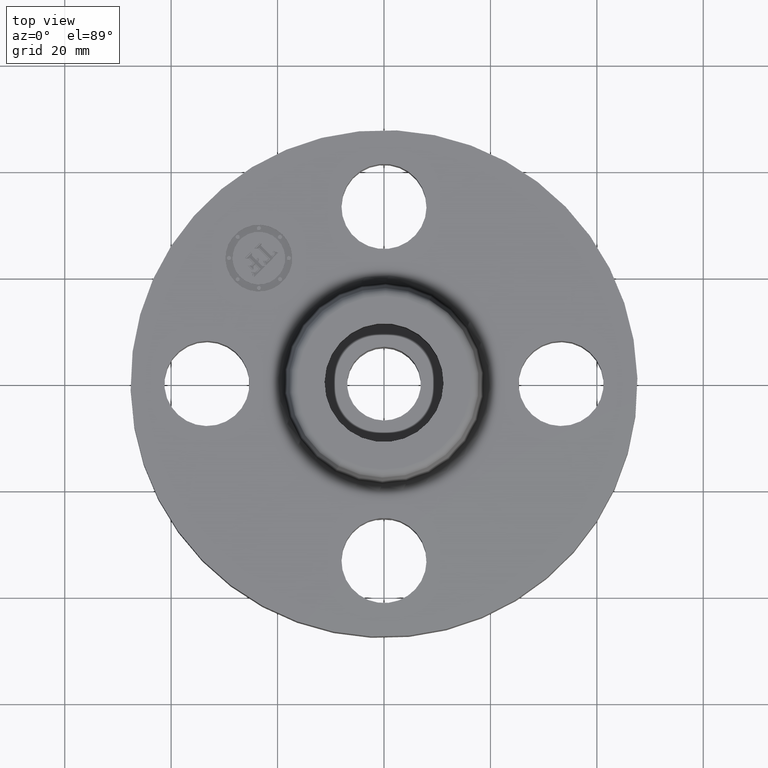
[diagram: clean part render]
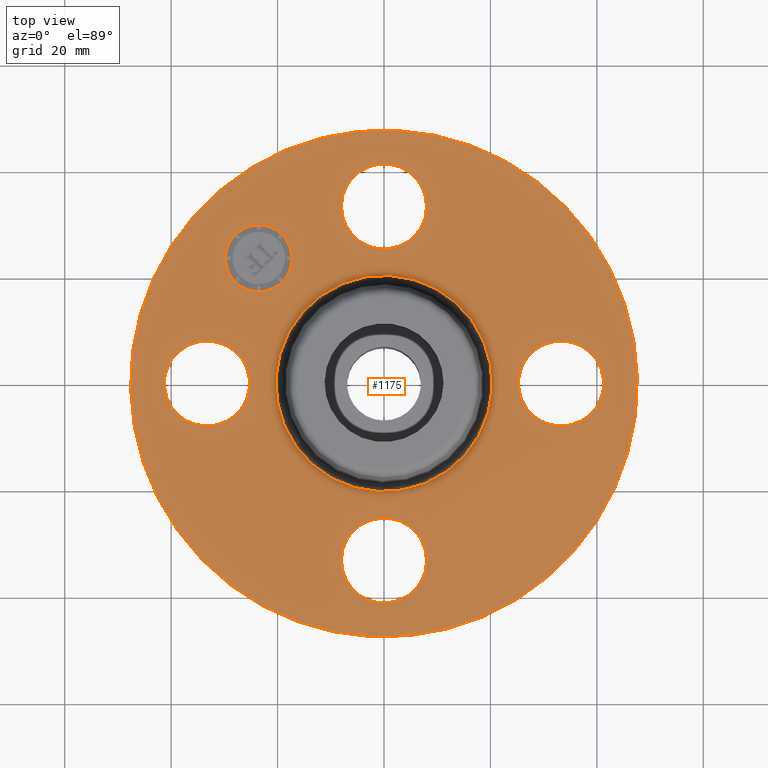
[diagram: same view with one face highlighted and labeled with its STEP entity id]
A machine part, top view. The second image highlights one B-rep face of the part: STEP entity #1175.
In plain terms, the highlighted planar face has unit normal (0, 0, -1).
Its self-contained STEP definition (entity closure, byte-faithful):
#573=AXIS2_PLACEMENT_3D('Circle Axis2P3D',#571,#572,$) ;
#592=AXIS2_PLACEMENT_3D('Circle Axis2P3D',#590,#591,$) ;
#623=AXIS2_PLACEMENT_3D('Circle Axis2P3D',#621,#622,$) ;
#654=AXIS2_PLACEMENT_3D('Circle Axis2P3D',#652,#653,$) ;
#685=AXIS2_PLACEMENT_3D('Circle Axis2P3D',#683,#684,$) ;
#716=AXIS2_PLACEMENT_3D('Circle Axis2P3D',#714,#715,$) ;
#728=AXIS2_PLACEMENT_3D('Circle Axis2P3D',#726,#727,$) ;
#744=AXIS2_PLACEMENT_3D('Circle Axis2P3D',#742,#743,$) ;
#760=AXIS2_PLACEMENT_3D('Circle Axis2P3D',#758,#759,$) ;
#776=AXIS2_PLACEMENT_3D('Circle Axis2P3D',#774,#775,$) ;
#797=AXIS2_PLACEMENT_3D('Circle Axis2P3D',#795,#796,$) ;
#832=AXIS2_PLACEMENT_3D('Circle Axis2P3D',#830,#831,$) ;
#1131=AXIS2_PLACEMENT_3D('Plane Axis2P3D',#1128,#1129,#1130) ;
#1159=AXIS2_PLACEMENT_3D('Circle Axis2P3D',#1157,#1158,$) ;
#1168=AXIS2_PLACEMENT_3D('Circle Axis2P3D',#1166,#1167,$) ;
#568=CARTESIAN_POINT('Vertex',(-0.898922884886,-1.64546730355,0.560000000002)) ;
#571=CARTESIAN_POINT('Axis2P3D Location',(0.,0.,0.560000000002)) ;
#575=CARTESIAN_POINT('Vertex',(0.898922884886,1.64546730355,0.560000000002)) ;
#590=CARTESIAN_POINT('Axis2P3D Location',(0.,0.,0.560000000002)) ;
#611=CARTESIAN_POINT('Vertex',(0.276438506997,-1.46101904467,0.560000000002)) ;
#618=CARTESIAN_POINT('Vertex',(-0.276438506997,-1.15898095534,0.560000000002)) ;
#621=CARTESIAN_POINT('Axis2P3D Location',(1.60428730689E-016,-1.31000000001,0.560000000002)) ;
#642=CARTESIAN_POINT('Vertex',(-1.46101904467,-0.276438506997,0.560000000002)) ;
#649=CARTESIAN_POINT('Vertex',(-1.15898095534,0.276438506997,0.560000000002)) ;
#652=CARTESIAN_POINT('Axis2P3D Location',(-1.31000000001,-2.40643096033E-016,0.560000000002)) ;
#673=CARTESIAN_POINT('Vertex',(-0.276438506997,1.46101904467,0.560000000002)) ;
#680=CARTESIAN_POINT('Vertex',(0.276438506997,1.15898095534,0.560000000002)) ;
#683=CARTESIAN_POINT('Axis2P3D Location',(0.,1.31000000001,0.560000000002)) ;
#704=CARTESIAN_POINT('Vertex',(1.46101904467,0.276438506997,0.560000000002)) ;
#711=CARTESIAN_POINT('Vertex',(1.15898095534,-0.276438506997,0.560000000002)) ;
#714=CARTESIAN_POINT('Axis2P3D Location',(1.31000000001,8.02143653445E-017,0.560000000002)) ;
#726=CARTESIAN_POINT('Axis2P3D Location',(1.31000000001,8.02143653445E-017,0.560000000002)) ;
#742=CARTESIAN_POINT('Axis2P3D Location',(0.,1.31000000001,0.560000000002)) ;
#758=CARTESIAN_POINT('Axis2P3D Location',(-1.31000000001,-2.40643096033E-016,0.560000000002)) ;
#774=CARTESIAN_POINT('Axis2P3D Location',(1.60428730689E-016,-1.31000000001,0.560000000002)) ;
#795=CARTESIAN_POINT('Axis2P3D Location',(0.,0.,0.560000000002)) ;
#799=CARTESIAN_POINT('Vertex',(0.383706301512,0.702369673661,0.560000000002)) ;
#801=CARTESIAN_POINT('Vertex',(-0.383706301512,-0.702369673661,0.560000000002)) ;
#830=CARTESIAN_POINT('Axis2P3D Location',(0.,0.,0.560000000002)) ;
#1128=CARTESIAN_POINT('Axis2P3D Location',(0.,1.87500000001,0.560000000002)) ;
#1157=CARTESIAN_POINT('Axis2P3D Location',(-0.926309883358,0.926309883358,0.560000000002)) ;
#1161=CARTESIAN_POINT('Vertex',(-1.1013188117,0.751300955014,0.560000000002)) ;
#1163=CARTESIAN_POINT('Vertex',(-0.751300955014,1.1013188117,0.560000000002)) ;
#1166=CARTESIAN_POINT('Axis2P3D Location',(-0.926309883358,0.926309883358,0.560000000002)) ;
#572=DIRECTION('Axis2P3D Direction',(0.,0.,-0.0393700787402)) ;
#591=DIRECTION('Axis2P3D Direction',(0.,0.,-0.0393700787402)) ;
#622=DIRECTION('Axis2P3D Direction',(-0.,0.,-0.0393700787402)) ;
#653=DIRECTION('Axis2P3D Direction',(0.,0.,-0.0393700787402)) ;
#684=DIRECTION('Axis2P3D Direction',(0.,-0.,-0.0393700787402)) ;
#715=DIRECTION('Axis2P3D Direction',(0.,-0.,-0.0393700787402)) ;
#727=DIRECTION('Axis2P3D Direction',(0.,-0.,-0.0393700787402)) ;
#743=DIRECTION('Axis2P3D Direction',(0.,-0.,-0.0393700787402)) ;
#759=DIRECTION('Axis2P3D Direction',(0.,0.,-0.0393700787402)) ;
#775=DIRECTION('Axis2P3D Direction',(-0.,0.,-0.0393700787402)) ;
#796=DIRECTION('Axis2P3D Direction',(0.,0.,-0.0393700787402)) ;
#831=DIRECTION('Axis2P3D Direction',(0.,0.,-0.0393700787402)) ;
#1129=DIRECTION('Axis2P3D Direction',(0.,0.,-0.0393700787402)) ;
#1130=DIRECTION('Axis2P3D XDirection',(0.0393700787402,0.,0.)) ;
#1158=DIRECTION('Axis2P3D Direction',(0.,0.,-0.0393700787402)) ;
#1167=DIRECTION('Axis2P3D Direction',(0.,0.,-0.0393700787402)) ;
#1134=ORIENTED_EDGE('',*,*,#594,.F.) ;
#1135=ORIENTED_EDGE('',*,*,#577,.F.) ;
#1138=ORIENTED_EDGE('',*,*,#687,.T.) ;
#1139=ORIENTED_EDGE('',*,*,#746,.T.) ;
#1142=ORIENTED_EDGE('',*,*,#834,.T.) ;
#1143=ORIENTED_EDGE('',*,*,#803,.T.) ;
#1146=ORIENTED_EDGE('',*,*,#730,.T.) ;
#1147=ORIENTED_EDGE('',*,*,#718,.T.) ;
#1150=ORIENTED_EDGE('',*,*,#778,.T.) ;
#1151=ORIENTED_EDGE('',*,*,#625,.T.) ;
#1154=ORIENTED_EDGE('',*,*,#762,.T.) ;
#1155=ORIENTED_EDGE('',*,*,#656,.T.) ;
#1172=ORIENTED_EDGE('',*,*,#1165,.T.) ;
#1173=ORIENTED_EDGE('',*,*,#1170,.T.) ;
#1140=FACE_BOUND('',#1137,.T.) ;
#1144=FACE_BOUND('',#1141,.T.) ;
#1148=FACE_BOUND('',#1145,.T.) ;
#1152=FACE_BOUND('',#1149,.T.) ;
#1156=FACE_BOUND('',#1153,.T.) ;
#1174=FACE_BOUND('',#1171,.T.) ;
#1175=ADVANCED_FACE('PartBody',(#1136,#1140,#1144,#1148,#1152,#1156,#1174),#1132,.F.) ;
#574=CIRCLE('generated circle',#573,1.87500000001) ;
#593=CIRCLE('generated circle',#592,1.87500000001) ;
#624=CIRCLE('generated circle',#623,0.315000000001) ;
#655=CIRCLE('generated circle',#654,0.315000000001) ;
#686=CIRCLE('generated circle',#685,0.315000000001) ;
#717=CIRCLE('generated circle',#716,0.315000000001) ;
#729=CIRCLE('generated circle',#728,0.315000000001) ;
#745=CIRCLE('generated circle',#744,0.315000000001) ;
#761=CIRCLE('generated circle',#760,0.315000000001) ;
#777=CIRCLE('generated circle',#776,0.315000000001) ;
#798=CIRCLE('generated circle',#797,0.800345977874) ;
#833=CIRCLE('generated circle',#832,0.800345977874) ;
#1160=CIRCLE('generated circle',#1159,0.247500000001) ;
#1169=CIRCLE('generated circle',#1168,0.247500000001) ;
#577=EDGE_CURVE('',#569,#576,#574,.T.) ;
#594=EDGE_CURVE('',#576,#569,#593,.T.) ;
#625=EDGE_CURVE('',#612,#619,#624,.T.) ;
#656=EDGE_CURVE('',#643,#650,#655,.T.) ;
#687=EDGE_CURVE('',#674,#681,#686,.T.) ;
#718=EDGE_CURVE('',#705,#712,#717,.T.) ;
#730=EDGE_CURVE('',#712,#705,#729,.T.) ;
#746=EDGE_CURVE('',#681,#674,#745,.T.) ;
#762=EDGE_CURVE('',#650,#643,#761,.T.) ;
#778=EDGE_CURVE('',#619,#612,#777,.T.) ;
#803=EDGE_CURVE('',#800,#802,#798,.T.) ;
#834=EDGE_CURVE('',#802,#800,#833,.T.) ;
#1165=EDGE_CURVE('',#1162,#1164,#1160,.T.) ;
#1170=EDGE_CURVE('',#1164,#1162,#1169,.T.) ;
#1133=EDGE_LOOP('',(#1134,#1135)) ;
#1137=EDGE_LOOP('',(#1138,#1139)) ;
#1141=EDGE_LOOP('',(#1142,#1143)) ;
#1145=EDGE_LOOP('',(#1146,#1147)) ;
#1149=EDGE_LOOP('',(#1150,#1151)) ;
#1153=EDGE_LOOP('',(#1154,#1155)) ;
#1171=EDGE_LOOP('',(#1172,#1173)) ;
#1136=FACE_OUTER_BOUND('',#1133,.T.) ;
#1132=PLANE('',#1131) ;
#569=VERTEX_POINT('',#568) ;
#576=VERTEX_POINT('',#575) ;
#612=VERTEX_POINT('',#611) ;
#619=VERTEX_POINT('',#618) ;
#643=VERTEX_POINT('',#642) ;
#650=VERTEX_POINT('',#649) ;
#674=VERTEX_POINT('',#673) ;
#681=VERTEX_POINT('',#680) ;
#705=VERTEX_POINT('',#704) ;
#712=VERTEX_POINT('',#711) ;
#800=VERTEX_POINT('',#799) ;
#802=VERTEX_POINT('',#801) ;
#1162=VERTEX_POINT('',#1161) ;
#1164=VERTEX_POINT('',#1163) ;